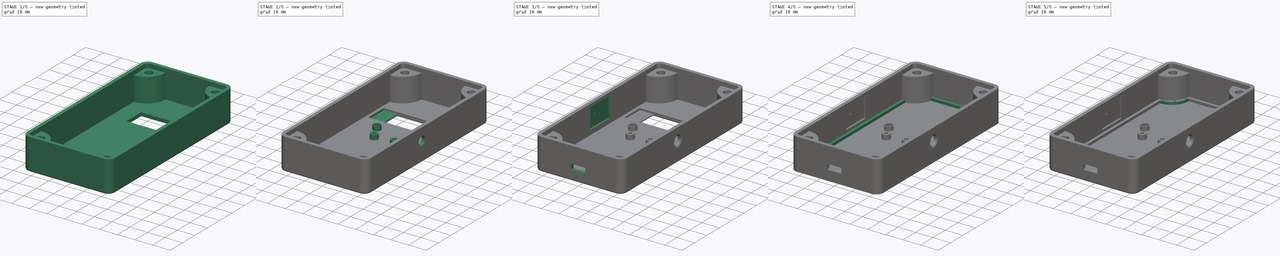
[diagram: build sequence overview — one tinted view per stage of 5, left to right]
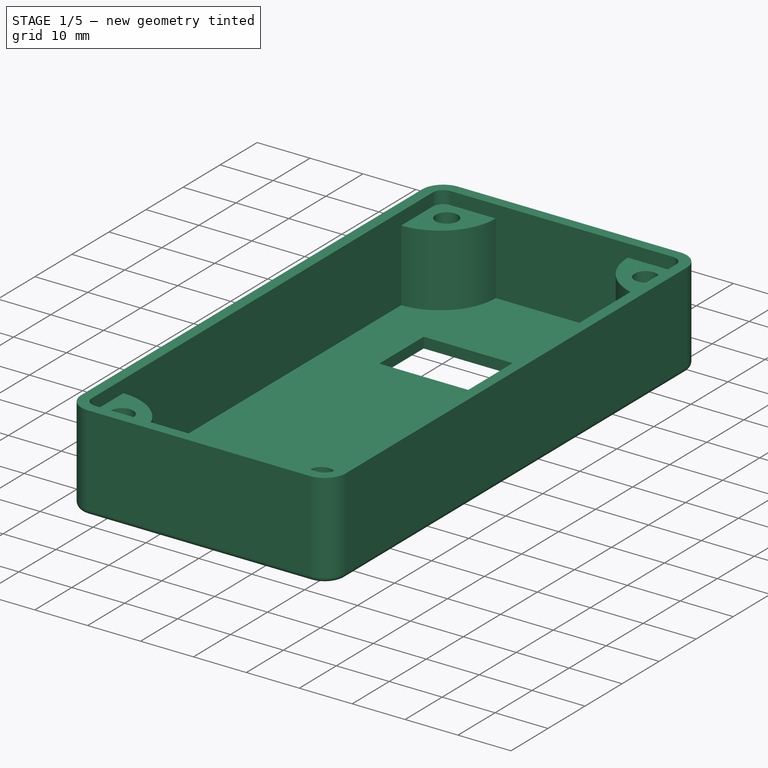
[diagram: stage 1 of 5 — iso view after this stage's code; geometry added in this stage tinted green]
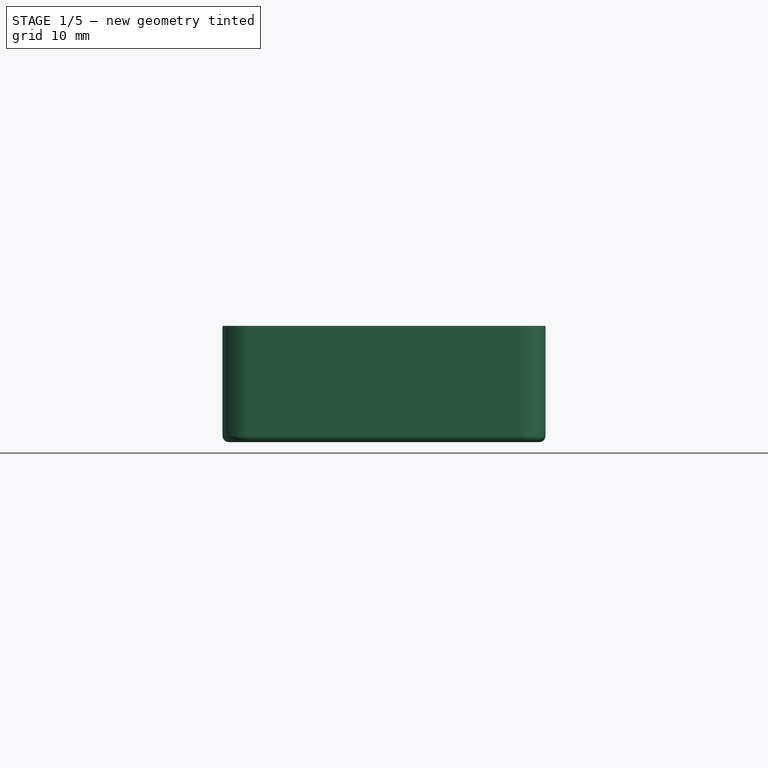
[diagram: stage 1 of 5 — front view after this stage's code; geometry added in this stage tinted green]
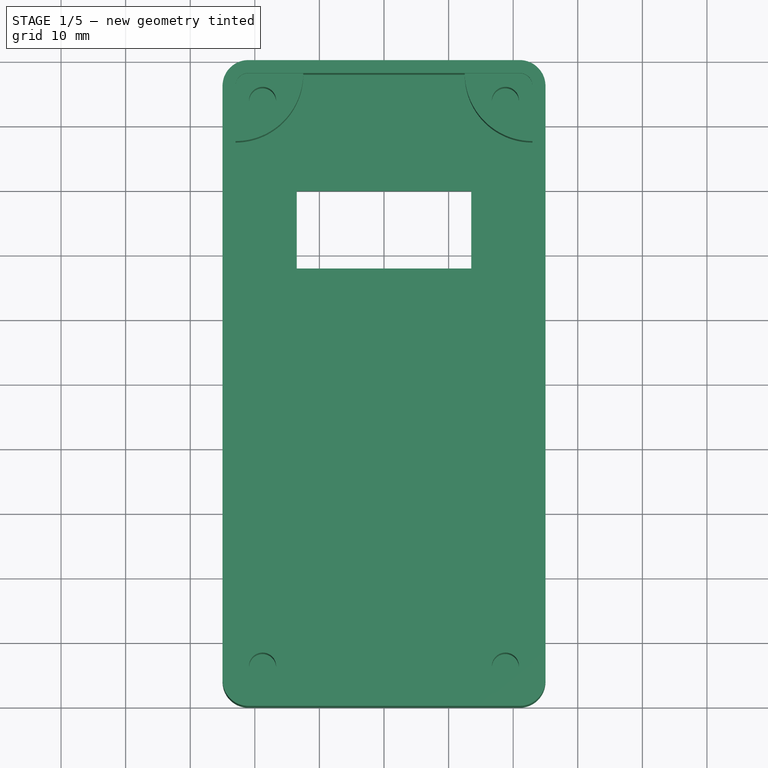
[diagram: stage 1 of 5 — top view after this stage's code; geometry added in this stage tinted green]
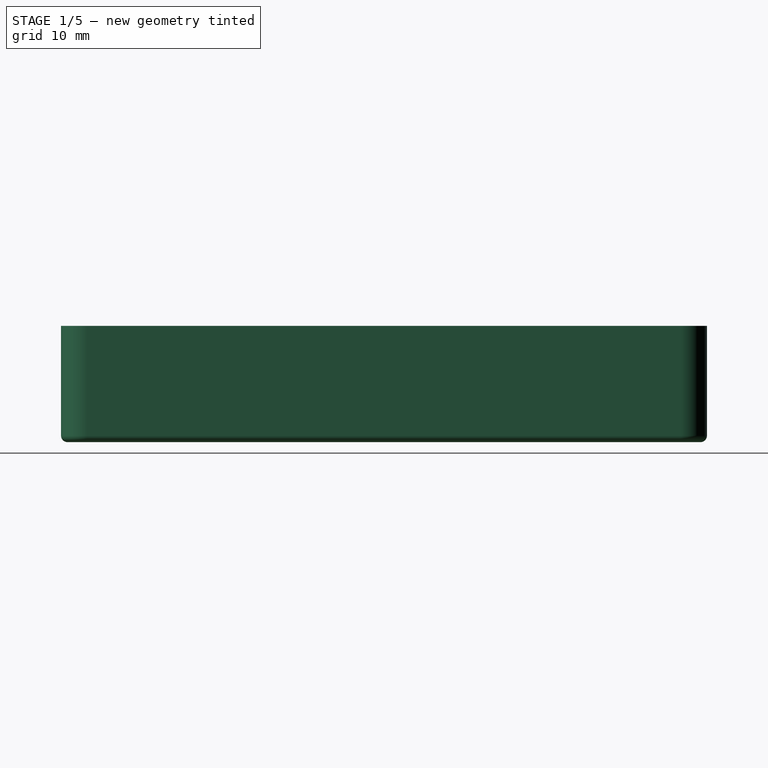
[diagram: stage 1 of 5 — right view after this stage's code; geometry added in this stage tinted green]
FCSTD DOCUMENT  (FreeCAD 1.0R39109 (Git))
Label: Project_Box_OLEDBOXFACE_91_PF_TempSensor_New
License: All rights reserved
LicenseURL: http://en.wikipedia.org/wiki/All_rights_reserved
objects: Sketcher::SketchObject×18, PartDesign::Pocket×12, PartDesign::Pad×7, PartDesign::Mirrored×6, PartDesign::Fillet×4, PartDesign::MultiTransform×3, PartDesign::Chamfer×2, PartDesign::Body×2, App::Part×2, Spreadsheet::Sheet×1, Part::Part2DObjectPython×1
note: 132 computed .brp shape members not serialized (recipe doc carries the construction recipe); baked Part::Feature solids carry a one-line shape summary decoded from their .brp

FEATURE [Spreadsheet::Sheet] Spreadsheet  label="p"
  cells = A1='box_outer_width; B1(box_outer_width)=50; A2='box_outer_length; B2(box_outer_length)=100; A3='box_outer_depth; B3(box_outer_depth)=18; A5='box_inner_width; B5(box_inner_width)==B1 - B12 * 2; C5='Calculated; A6='box_inner_length; B6(box_inner_length)==B2 - B12 * 2; C6='Calculated; A7='box_inner_depth; B7(box_inner_depth)==B3 - B12; C7='Calculated; A9='box_outer_radius; B9(box_outer_radius)==B12 + 2; C9='Calculated; A10='box_inner_radius; B10(box_inner_radius)==B9 / 2; C10='Calculated; A12='box_wall_thickness; B12(box_wall_thickness)=2; A13='box_wall_clearance; B13(box_wall_clearance)==B12 * 0.2; C13='Calculated 20%; A15='lug_insert_diameter; B15(lug_insert_diameter)=4.2; A16='lug_depth; B16(lug_depth)==B7 - B12; A17='lug_outer_radius; B17(lug_outer_radius)==B15 * 2.5; A19='face_fillet; B19(face_fillet)=1; A21='lid_ridge_size; B21(lid_ridge_size)=1.5; A22='lid_screw_diameter; B22(lid_screw_diameter)=4; A23='lid_screw_chamfer; B23(lid_screw_chamfer)=1.98; A25='oled_width; B25(oled_width)=42; A26='oled_length; B26(oled_length)=12; A27='oled_depth; B27(oled_depth)=3.8; A28='oled_disp_width; B28(oled_disp_width)=27; A29='oled_disp_length; B29(oled_disp_length)=12; A30='oled_disp_offset; B30(oled_disp_offset)=1; A31='oled_clearance; B31(oled_clearance)=0.2; A32='oled_chamfer; B32(oled_chamfer)==0.5 mm; A34='led_diameter; B34(led_diameter)=3; A35='led_depth; B35(led_depth)=4.3; A36='led_lip_diameter; B36(led_lip_diameter)=3.85; A37='led_lip_depth; B37(led_lip_depth)=1; A38='led_oled_clearance; B38(led_oled_clearance)=9; A39='led_clearance; B39(led_clearance)=0.5; A40='led_fillet; B40(led_fillet)==0.5 mm; A42='pi_post_hole_diameter; B42(pi_post_hole_diameter)=2.1; A43='pi_post_diameter; B43(pi_post_diameter)==B42 * 2; C43='Calculated; A44='pi_post_depth; B44(pi_post_depth)=2.75; A45='pi_post_screw_diameter; B45(pi_post_screw_diameter)=2; A46='pi_post_width; B46(pi_post_width)=11.4; A47='pi_post_length; B47(pi_post_length)==B50 - 2; C47='Calculated; A48='pi_width; B48(pi_width)=21; A49='pi_pin_width; B49(pi_pin_width)=17.78; A50='pi_length; B50(pi_length)=51; A51='pi_depth; B51(pi_depth)=1; A52='pi_usb_width; B52(pi_usb_width)=8.1; A53='pi_usb_length; B53(pi_usb_length)=3; A54='pi_usb_depth; B54(pi_usb_depth)=6; A55='pi_usb_lip_depth; B55(pi_usb_lip_depth)=1.3; A56='pi_body_clearance; B56(pi_body_clearance)=0.5; A58='sense_cable_diameter; B58(sense_cable_diameter)=5; A59='sense_cable_edge_offset; B59(sense_cable_edge_offset)=20; A60='sense_cable_clearance; B60(sense_cable_clearance)=1; A61='sense_cable_fillet; B61(sense_cable_fillet)=1; A63='touch_width; B63(touch_width)=14.5; A64='touch_length; B64(touch_length)=10.7; A65='touch_depth; B65(touch_depth)=2.15; A66='touch_hole_offset; B66(touch_hole_offset)=2.5; A67='touch_clearance; B67(touch_clearance)=1
FEATURE [Sketcher::SketchObject] Sketch  label="Main Body Sketch"
  ArcFitTolerance = 0
  AttachmentSupport = -> [XY_Plane001]
  FullyConstrained = true
  MakeInternals = false
  MapMode = 5
  expr: Constraints[16] = <<p>>.box_outer_radius
  expr: Constraints[17] = <<p>>.box_outer_width / 2
  expr: Constraints[18] = <<p>>.box_outer_length / 2
  sketch-geometry (8):
    g0: LineSegment StartX=-21 StartY=50 StartZ=0 EndX=21 EndY=50 EndZ=0
    g1: LineSegment StartX=25 StartY=46 StartZ=0 EndX=25 EndY=-46 EndZ=0
    g2: LineSegment StartX=21 StartY=-50 StartZ=0 EndX=-21 EndY=-50 EndZ=0
    g3: LineSegment StartX=-25 StartY=-46 StartZ=0 EndX=-25 EndY=46 EndZ=0
    g4: ArcOfCircle CenterX=-21 CenterY=46 CenterZ=0 NormalX=0 NormalY=0 NormalZ=1 AngleXU=0 Radius=4 StartAngle=1.5708 EndAngle=3.14159
    g5: ArcOfCircle CenterX=21 CenterY=46 CenterZ=0 NormalX=0 NormalY=0 NormalZ=1 AngleXU=0 Radius=4 StartAngle=0 EndAngle=1.5708
    g6: ArcOfCircle CenterX=21 CenterY=-46 CenterZ=0 NormalX=0 NormalY=0 NormalZ=1 AngleXU=0 Radius=4 StartAngle=4.71239 EndAngle=6.28319
    g7: ArcOfCircle CenterX=-21 CenterY=-46 CenterZ=0 NormalX=0 NormalY=0 NormalZ=1 AngleXU=0 Radius=4 StartAngle=3.14159 EndAngle=4.71239
  constraints (19):
    c: Horizontal(g0)
    c: Horizontal(g2)
    c: Vertical(g1)
    c: Vertical(g3)
    c: Tangent(g3,g4) = 1.5708
    c: Tangent(g0,g4) = 1.5708
    c: Tangent(g0,g5) = 1.5708
    c: Tangent(g1,g5) = 1.5708
    c: Tangent(g1,g6) = 1.5708
    c: Tangent(g2,g6) = 1.5708
    c: Tangent(g2,g7) = 1.5708
    c: Tangent(g3,g7) = 1.5708
    c: Symmetric(g5,g7,g-1)
    c: Equal(g6,g7)
    c: Equal(g7,g4)
    c: Equal(g4,g5)
    c: Radius(g5) = 4
    c: DistanceX(g3,g-1) = 25
    c: DistanceY(g-1,g0) = 50
FEATURE [PartDesign::Pad] Pad  label="Box Outer Body"
  Direction = (0,0,1)
  Length = 18
  Length2 = 10
  Profile = -> Sketch
  ReferenceAxis = -> Sketch [N_Axis]
  Suppressed = false
  Type = 0
  expr: Length = <<p>>.box_outer_depth
FEATURE [Sketcher::SketchObject] Sketch001  label="Inner Body Sketch"
  ArcFitTolerance = 0
  AttachmentSupport = -> [Pad]
  FullyConstrained = true
  MakeInternals = false
  MapMode = 5
  Placement = pos=(0,0,18) rot=(0,0,1;0rad)
  expr: Constraints[16] = <<p>>.box_inner_width / 2
  expr: Constraints[17] = <<p>>.box_inner_length / 2
  expr: Constraints[18] = <<p>>.box_inner_radius
  sketch-geometry (8):
    g0: LineSegment StartX=-21 StartY=48 StartZ=0 EndX=21 EndY=48 EndZ=0
    g1: LineSegment StartX=23 StartY=46 StartZ=0 EndX=23 EndY=-46 EndZ=0
    g2: LineSegment StartX=21 StartY=-48 StartZ=0 EndX=-21 EndY=-48 EndZ=0
    g3: LineSegment StartX=-23 StartY=-46 StartZ=0 EndX=-23 EndY=46 EndZ=0
    g4: ArcOfCircle CenterX=-21 CenterY=46 CenterZ=0 NormalX=0 NormalY=0 NormalZ=1 AngleXU=0 Radius=2 StartAngle=1.5708 EndAngle=3.14159
    g5: ArcOfCircle CenterX=21 CenterY=46 CenterZ=0 NormalX=0 NormalY=0 NormalZ=1 AngleXU=0 Radius=2 StartAngle=4e-16 EndAngle=1.5708
    g6: ArcOfCircle CenterX=21 CenterY=-46 CenterZ=0 NormalX=0 NormalY=0 NormalZ=1 AngleXU=0 Radius=2 StartAngle=4.71239 EndAngle=6.28319
    g7: ArcOfCircle CenterX=-21 CenterY=-46 CenterZ=0 NormalX=0 NormalY=0 NormalZ=1 AngleXU=0 Radius=2 StartAngle=3.14159 EndAngle=4.71239
  constraints (19):
    c: Horizontal(g0)
    c: Horizontal(g2)
    c: Vertical(g1)
    c: Vertical(g3)
    c: Tangent(g3,g4) = 1.5708
    c: Tangent(g0,g4) = 1.5708
    c: Tangent(g0,g5) = 1.5708
    c: Tangent(g1,g5) = 1.5708
    c: Tangent(g1,g6) = 1.5708
    c: Tangent(g2,g6) = 1.5708
    c: Tangent(g2,g7) = 1.5708
    c: Tangent(g3,g7) = 1.5708
    c: Equal(g4,g5)
    c: Equal(g5,g6)
    c: Equal(g6,g7)
    c: Symmetric(g5,g7,g-1)
    c: DistanceX(g3,g-1) = 23
    c: DistanceY(g-1,g0) = 48
    c: Radius(g5) = 2
FEATURE [PartDesign::Pocket] Pocket  label="Box Inner Pocket"
  BaseFeature = -> Pad
  Direction = (0,0,-1)
  Length = 16
  Length2 = 5
  Profile = -> Sketch001
  ReferenceAxis = -> Sketch001 [N_Axis]
  Suppressed = false
  Type = 0
  expr: Length = <<p>>.box_inner_depth
FEATURE [Sketcher::SketchObject] Sketch002  label="Lug Sketch"
  ArcFitTolerance = 0
  AttachmentSupport = -> [Pocket]
  FullyConstrained = true
  MakeInternals = false
  MapMode = 5
  Placement = pos=(0,0,2) rot=(0,0,1;0rad)
  expr: Constraints[10] = <<p>>.lug_insert_diameter
  expr: Constraints[11] = <<p>>.lug_insert_diameter
  expr: Constraints[6] = <<p>>.lug_outer_radius
  expr: Constraints[7] = <<p>>.box_inner_width / 2
  expr: Constraints[8] = <<p>>.box_inner_length / 2
  expr: Constraints[9] = <<p>>.lug_insert_diameter
  sketch-geometry (4):
    g0: LineSegment StartX=-23 StartY=37.5 StartZ=0 EndX=-23 EndY=48 EndZ=0
    g1: LineSegment StartX=-23 StartY=48 StartZ=0 EndX=-12.5 EndY=48 EndZ=0
    g2: ArcOfCircle CenterX=-23 CenterY=48 CenterZ=0 NormalX=0 NormalY=0 NormalZ=1 AngleXU=0 Radius=10.5 StartAngle=4.71239 EndAngle=6.28319
    g3: Circle CenterX=-18.8 CenterY=43.8 CenterZ=0 NormalX=0 NormalY=0 NormalZ=1 AngleXU=0 Radius=2.1
  constraints (12):
    c: Vertical(g0)
    c: Coincident(g0,g1)
    c: Horizontal(g1)
    c: Coincident(g2,g0)
    c: Coincident(g2,g1)
    c: Coincident(g2,g0)
    c: Radius(g2) = 10.5
    c: DistanceX(g0,g-1) = 23
    c: DistanceY(g-1,g0) = 48
    c: Diameter(g3) = 4.2
    c: DistanceX(g0,g3) = 4.2
    c: DistanceY(g3,g0) = 4.2
FEATURE [PartDesign::Pad] Pad001  label="Lug"
  BaseFeature = -> Pocket
  Direction = (0,0,1)
  Length = 13.6
  Length2 = 10
  Profile = -> Sketch002
  ReferenceAxis = -> Sketch002 [N_Axis]
  Suppressed = false
  Type = 0
  expr: Length = <<p>>.lug_depth - <<p>>.box_wall_clearance
FEATURE [PartDesign::Mirrored] Mirrored
  MirrorPlane = -> Sketch002 [V_Axis]
  Suppressed = false
  TransformMode = 0
FEATURE [PartDesign::Mirrored] Mirrored001
  MirrorPlane = -> Sketch002 [H_Axis]
  Suppressed = false
  TransformMode = 0
FEATURE [PartDesign::MultiTransform] MultiTransform  label="Lugs Mirror"
  BaseFeature = -> Pad001
  Originals = -> [Pad001]
  Suppressed = false
  TransformMode = 0
  Transformations = -> [Mirrored,Mirrored001]
FEATURE [PartDesign::Fillet] Fillet
  Base = -> MultiTransform [Edge3,Edge9,Edge11,Edge12,Edge13,Edge14,Edge15,Edge6]
  BaseFeature = -> MultiTransform
  Radius = 1
  SupportTransform = false
  Suppressed = false
  UseAllEdges = false
  expr: Radius = Spreadsheet.face_fillet
FEATURE [PartDesign::Body] Body001  label="Main Lid"
  AllowCompound = false
  Group = -> [Sketch003,Pad002,Sketch004,Pad003,Sketch005,Pocket001,Sketch006,Pad004,MultiTransform001,Mirrored002,Mirrored003,Sketch007,Pocket002,MultiTransform002,Mirrored004,Mirrored005,Fillet001,Chamfer]
  Origin = -> Origin003
  Tip = -> Chamfer
FEATURE [App::Part] Part001  label="Lid"
  Group = -> [Body001]
  Origin = -> Origin002
FEATURE [Sketcher::SketchObject] Sketch008  label="Oled Display Pocket Sketch"
  ArcFitTolerance = 0
  AttachmentSupport = -> [Fillet]
  FullyConstrained = true
  MakeInternals = false
  MapMode = 5
  Placement = pos=(0,0,2) rot=(0,0,1;0rad)
  expr: Constraints[10] = <<p>>.oled_disp_width / 2
  expr: Constraints[11] = <<p>>.box_inner_length / 4 + <<p>>.oled_length / 2
  expr: Constraints[8] = <<p>>.oled_disp_length
  expr: Constraints[9] = <<p>>.oled_disp_width
  sketch-geometry (4):
    g0: LineSegment StartX=-13.5 StartY=30 StartZ=0 EndX=13.5 EndY=30 EndZ=0
    g1: LineSegment StartX=13.5 StartY=30 StartZ=0 EndX=13.5 EndY=18 EndZ=0
    g2: LineSegment StartX=13.5 StartY=18 StartZ=0 EndX=-13.5 EndY=18 EndZ=0
    g3: LineSegment StartX=-13.5 StartY=18 StartZ=0 EndX=-13.5 EndY=30 EndZ=0
  constraints (12):
    c: Coincident(g0,g1)
    c: Coincident(g1,g2)
    c: Coincident(g2,g3)
    c: Coincident(g3,g0)
    c: Horizontal(g0)
    c: Horizontal(g2)
    c: Vertical(g1)
    c: Vertical(g3)
    c: DistanceY(g3,g3) = 12
    c: DistanceX(g0,g0) = 27
    c: DistanceX(g2,g-1) = 13.5
    c: DistanceY(g-1,g0) = 30
FEATURE [PartDesign::Pocket] Pocket003  label="Oled Display Pocket"
  BaseFeature = -> Fillet
  Direction = (0,0,-1)
  Length = 2
  Length2 = 5
  Profile = -> Sketch008
  ReferenceAxis = -> Sketch008 [N_Axis]
  Suppressed = false
  Type = 0
  expr: Length = <<p>>.box_wall_thickness
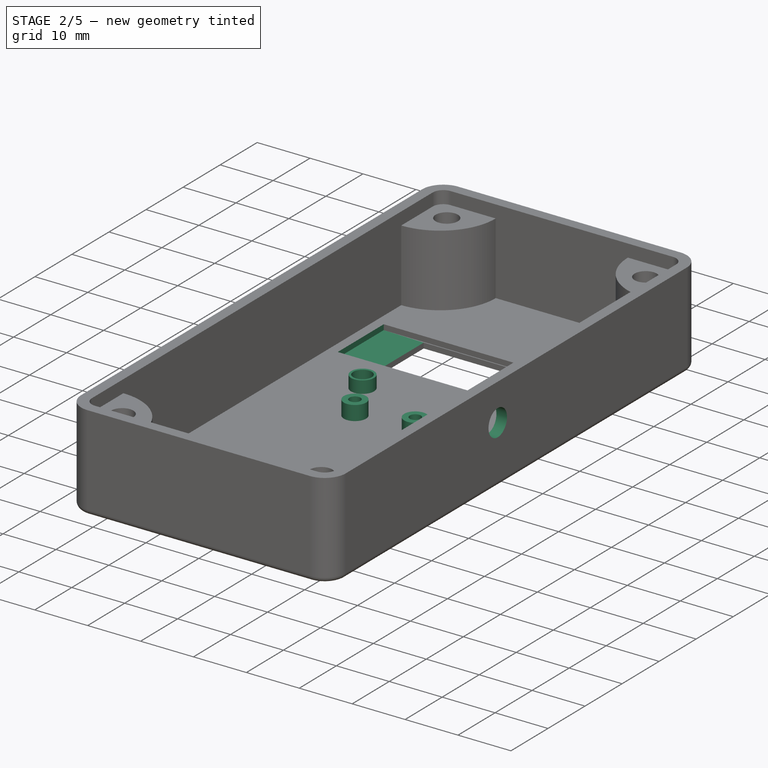
[diagram: stage 2 of 5 — iso view after this stage's code; geometry added in this stage tinted green]
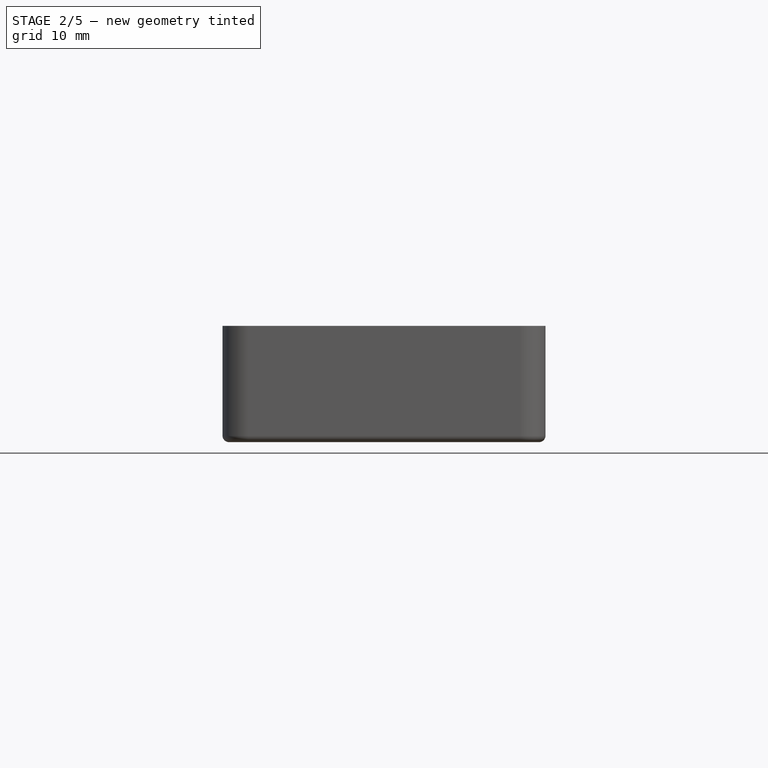
[diagram: stage 2 of 5 — front view after this stage's code; geometry added in this stage tinted green]
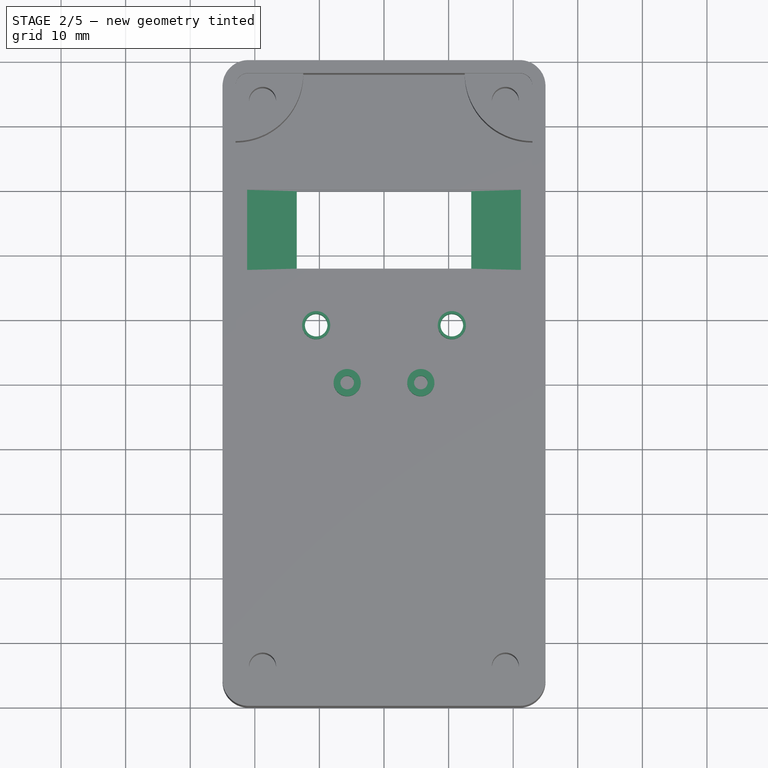
[diagram: stage 2 of 5 — top view after this stage's code; geometry added in this stage tinted green]
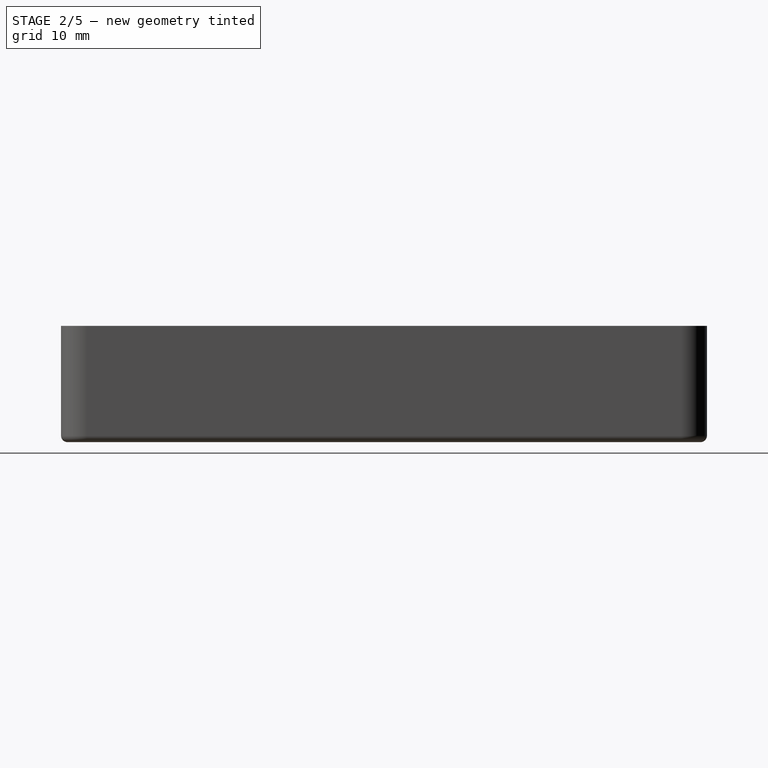
[diagram: stage 2 of 5 — right view after this stage's code; geometry added in this stage tinted green]
FEATURE [Sketcher::SketchObject] Sketch009  label="OLED Body Sketch"
  ArcFitTolerance = 0
  AttachmentSupport = -> [Pocket003]
  FullyConstrained = true
  MakeInternals = false
  MapMode = 5
  Placement = pos=(0,0,2) rot=(0,0,1;0rad)
  expr: Constraints[10] = <<p>>.box_inner_length / 4 + <<p>>.oled_length / 2 + <<p>>.oled_clearance
  expr: Constraints[11] = <<p>>.oled_length + <<p>>.oled_clearance * 2
  expr: Constraints[8] = <<p>>.oled_width + <<p>>.oled_clearance * 2
  expr: Constraints[9] = <<p>>.oled_width / 2 + <<p>>.oled_clearance
  sketch-geometry (4):
    g0: LineSegment StartX=-21.2 StartY=30.2 StartZ=0 EndX=21.2 EndY=30.2 EndZ=0
    g1: LineSegment StartX=21.2 StartY=30.2 StartZ=0 EndX=21.2 EndY=17.8 EndZ=0
    g2: LineSegment StartX=21.2 StartY=17.8 StartZ=0 EndX=-21.2 EndY=17.8 EndZ=0
    g3: LineSegment StartX=-21.2 StartY=17.8 StartZ=0 EndX=-21.2 EndY=30.2 EndZ=0
  constraints (12):
    c: Coincident(g0,g1)
    c: Coincident(g1,g2)
    c: Coincident(g2,g3)
    c: Coincident(g3,g0)
    c: Horizontal(g0)
    c: Horizontal(g2)
    c: Vertical(g1)
    c: Vertical(g3)
    c: DistanceX(g0,g0) = 42.4
    c: DistanceX(g0,g-1) = 21.2
    c: DistanceY(g-1,g0) = 30.2
    c: DistanceY(g3,g3) = 12.4
FEATURE [PartDesign::Pocket] Pocket004  label="OLED Body Pocket"
  BaseFeature = -> Pocket003
  Direction = (0,0,-1)
  Length = 1
  Length2 = 5
  Profile = -> Sketch009
  ReferenceAxis = -> Sketch009 [N_Axis]
  Suppressed = false
  Type = 0
  expr: Length = <<p>>.box_wall_thickness - 1
FEATURE [Sketcher::SketchObject] Sketch010  label="LEDs Sketch"
  ArcFitTolerance = 0
  AttachmentSupport = -> [Pocket004]
  FullyConstrained = true
  MakeInternals = false
  MapMode = 5
  Placement = pos=(0,0,2) rot=(0,0,1;0rad)
  expr: Constraints[1] = <<p>>.led_diameter + <<p>>.led_clearance
  expr: Constraints[2] = <<p>>.box_inner_length / 4 + <<p>>.oled_length / 2 + <<p>>.oled_clearance - <<p>>.oled_length - <<p>>.led_oled_clearance
  expr: Constraints[3] = <<p>>.box_inner_length / 4 + <<p>>.oled_length / 2 + <<p>>.oled_clearance - <<p>>.oled_length - <<p>>.led_oled_clearance
  expr: Constraints[4] = <<p>>.oled_disp_width / 2 - <<p>>.led_diameter
  expr: Constraints[5] = <<p>>.oled_disp_width / 2 - <<p>>.led_diameter
  sketch-geometry (2):
    g0: Circle CenterX=-10.5 CenterY=9.2 CenterZ=0 NormalX=0 NormalY=0 NormalZ=1 AngleXU=0 Radius=1.75
    g1: Circle CenterX=10.5 CenterY=9.2 CenterZ=0 NormalX=0 NormalY=0 NormalZ=1 AngleXU=0 Radius=1.75
  constraints (6):
    c: Equal(g0,g1)
    c: Diameter(g0) = 3.5
    c: DistanceY(g-1,g0) = 9.2
    c: DistanceY(g-1,g1) = 9.2
    c: DistanceX(g0,g-1) = 10.5
    c: DistanceX(g-1,g1) = 10.5
FEATURE [PartDesign::Pocket] Pocket005  label="LED Body Pocket"
  BaseFeature = -> Pocket004
  Direction = (0,0,-1)
  Length = 2
  Length2 = 5
  Profile = -> Sketch010
  ReferenceAxis = -> Sketch010 [N_Axis]
  Suppressed = false
  Type = 0
  expr: Length = <<p>>.box_wall_thickness
FEATURE [Sketcher::SketchObject] Sketch011  label="LEDs Post Sketch"
  ArcFitTolerance = 0
  AttachmentSupport = -> [Pocket004]
  FullyConstrained = true
  MakeInternals = false
  MapMode = 5
  Placement = pos=(0,0,2) rot=(0,0,1;0rad)
  expr: Constraints[1] = <<p>>.led_diameter + <<p>>.led_clearance
  expr: Constraints[2] = <<p>>.box_inner_length / 4 + <<p>>.oled_length / 2 + <<p>>.oled_clearance - <<p>>.oled_length - <<p>>.led_oled_clearance
  expr: Constraints[3] = <<p>>.box_inner_length / 4 + <<p>>.oled_length / 2 + <<p>>.oled_clearance - <<p>>.oled_length - <<p>>.led_oled_clearance
  expr: Constraints[4] = <<p>>.oled_disp_width / 2 - <<p>>.led_diameter
  expr: Constraints[5] = <<p>>.oled_disp_width / 2 - <<p>>.led_diameter
  expr: Constraints[8] = <<p>>.led_lip_diameter + <<p>>.led_clearance
  expr: Constraints[9] = <<p>>.led_lip_diameter + <<p>>.led_clearance
  sketch-geometry (4):
    g0: Circle CenterX=-10.5 CenterY=9.2 CenterZ=0 NormalX=0 NormalY=0 NormalZ=1 AngleXU=0 Radius=1.75
    g1: Circle CenterX=10.5 CenterY=9.2 CenterZ=0 NormalX=0 NormalY=0 NormalZ=1 AngleXU=0 Radius=1.75
    g2: Circle CenterX=-10.5 CenterY=9.2 CenterZ=0 NormalX=0 NormalY=0 NormalZ=1 AngleXU=0 Radius=2.175
    g3: Circle CenterX=10.5 CenterY=9.2 CenterZ=0 NormalX=0 NormalY=0 NormalZ=1 AngleXU=0 Radius=2.175
  constraints (10):
    c: Equal(g0,g1)
    c: Diameter(g0) = 3.5
    c: DistanceY(g-1,g0) = 9.2
    c: DistanceY(g-1,g1) = 9.2
    c: DistanceX(g0,g-1) = 10.5
    c: DistanceX(g-1,g1) = 10.5
    c: Coincident(g2,g0)
    c: Coincident(g3,g1)
    c: Diameter(g2) = 4.35
    c: Diameter(g3) = 4.35
FEATURE [PartDesign::Pad] Pad005  label="LED Posts"
  BaseFeature = -> Pocket005
  Direction = (0,0,1)
  Length = 2.3
  Length2 = 10
  Profile = -> Sketch011
  ReferenceAxis = -> Sketch011 [N_Axis]
  Suppressed = false
  Type = 0
  expr: Length = <<p>>.led_depth - <<p>>.box_wall_thickness
FEATURE [Sketcher::SketchObject] Sketch012  label="Pi Posts Sketch"
  ArcFitTolerance = 0
  AttachmentSupport = -> [Pad005]
  FullyConstrained = true
  MakeInternals = false
  MapMode = 5
  Placement = pos=(0,0,2) rot=(0,0,1;0rad)
  expr: Constraints[4] = <<p>>.pi_post_hole_diameter
  expr: Constraints[5] = <<p>>.pi_post_diameter
  expr: Constraints[6] = <<p>>.box_outer_length / 2 - (<<p>>.box_wall_thickness - <<p>>.pi_usb_lip_depth) - <<p>>.pi_post_length
  expr: Constraints[7] = <<p>>.box_outer_length / 2 - (<<p>>.box_wall_thickness - <<p>>.pi_usb_lip_depth) - <<p>>.pi_post_length
  expr: Constraints[8] = <<p>>.pi_post_width / 2
  expr: Constraints[9] = <<p>>.pi_post_width / 2
  sketch-geometry (4):
    g0: Circle CenterX=-5.7 CenterY=0.3 CenterZ=0 NormalX=0 NormalY=0 NormalZ=1 AngleXU=0 Radius=2.1
    g1: Circle CenterX=5.7 CenterY=0.3 CenterZ=0 NormalX=0 NormalY=0 NormalZ=1 AngleXU=0 Radius=2.1
    g2: Circle CenterX=-5.7 CenterY=0.3 CenterZ=0 NormalX=0 NormalY=0 NormalZ=1 AngleXU=0 Radius=1.05
    g3: Circle CenterX=5.7 CenterY=0.3 CenterZ=0 NormalX=0 NormalY=0 NormalZ=1 AngleXU=0 Radius=1.05
  constraints (10):
    c: Coincident(g2,g0)
    c: Coincident(g3,g1)
    c: Equal(g2,g3)
    c: Equal(g1,g0)
    c: Diameter(g2) = 2.1
    c: Diameter(g0) = 4.2
    c: DistanceY(g-1,g0) = 0.3
    c: DistanceY(g-1,g1) = 0.3
    c: DistanceX(g0,g-1) = 5.7
    c: DistanceX(g-1,g1) = 5.7
FEATURE [PartDesign::Pad] Pad006  label="Pi Posts"
  BaseFeature = -> Pad005
  Direction = (0,0,1)
  Length = 2.75
  Length2 = 10
  Profile = -> Sketch012
  ReferenceAxis = -> Sketch012 [N_Axis]
  Suppressed = false
  Type = 0
  expr: Length = <<p>>.pi_post_depth
FEATURE [Sketcher::SketchObject] Sketch013  label="Sense Cable Sketch"
  ArcFitTolerance = 0
  AttachmentSupport = -> [Pad006]
  FullyConstrained = true
  MakeInternals = false
  MapMode = 5
  Placement = pos=(25,0,0) rot=(0.57735,0.57735,0.57735;2.0944rad)
  expr: Constraints[0] = <<p>>.sense_cable_diameter
  expr: Constraints[1] = <<p>>.box_outer_width / 2 - <<p>>.sense_cable_edge_offset
  expr: Constraints[2] = <<p>>.box_outer_depth / 2 + <<p>>.box_wall_thickness
  sketch-geometry (1):
    g0: Circle CenterX=-5 CenterY=11 CenterZ=0 NormalX=0 NormalY=0 NormalZ=1 AngleXU=0 Radius=2.5
  constraints (3):
    c: Diameter(g0) = 5
    c: DistanceX(g0,g-1) = 5
    c: DistanceY(g-1,g0) = 11
FEATURE [PartDesign::Pocket] Pocket006  label="Sense Cable Pocket"
  BaseFeature = -> Pad006
  Direction = (-1,0,0)
  Length = 2
  Length2 = 5
  Profile = -> Sketch013
  ReferenceAxis = -> Sketch013 [N_Axis]
  Suppressed = false
  Type = 0
  expr: Length = <<p>>.box_wall_thickness
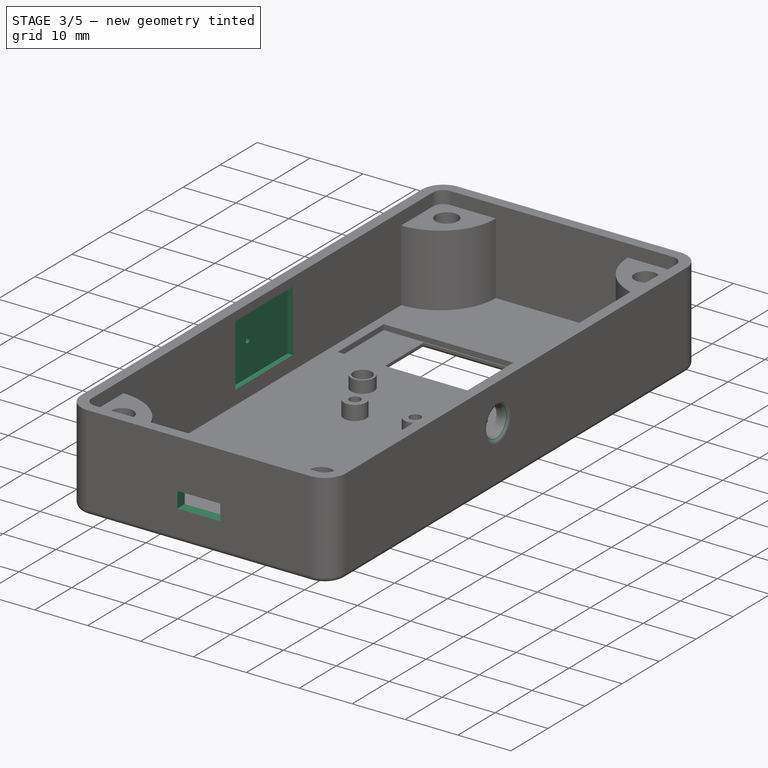
[diagram: stage 3 of 5 — iso view after this stage's code; geometry added in this stage tinted green]
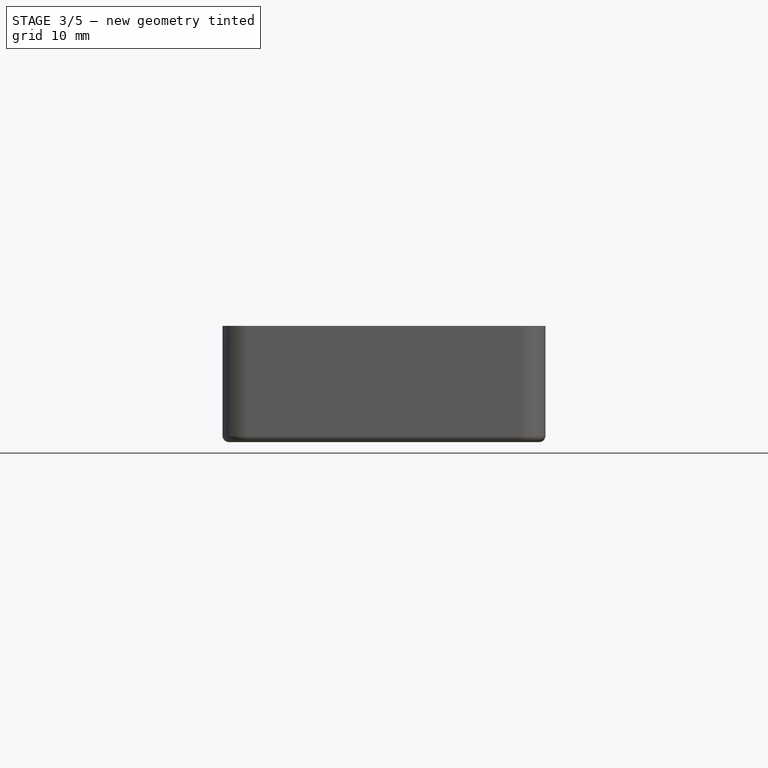
[diagram: stage 3 of 5 — front view after this stage's code; geometry added in this stage tinted green]
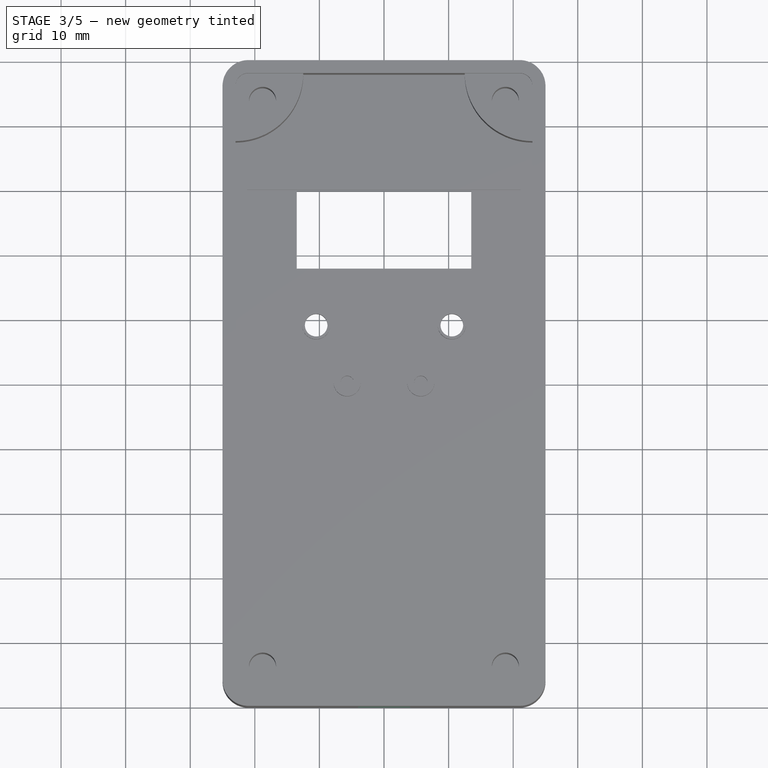
[diagram: stage 3 of 5 — top view after this stage's code; geometry added in this stage tinted green]
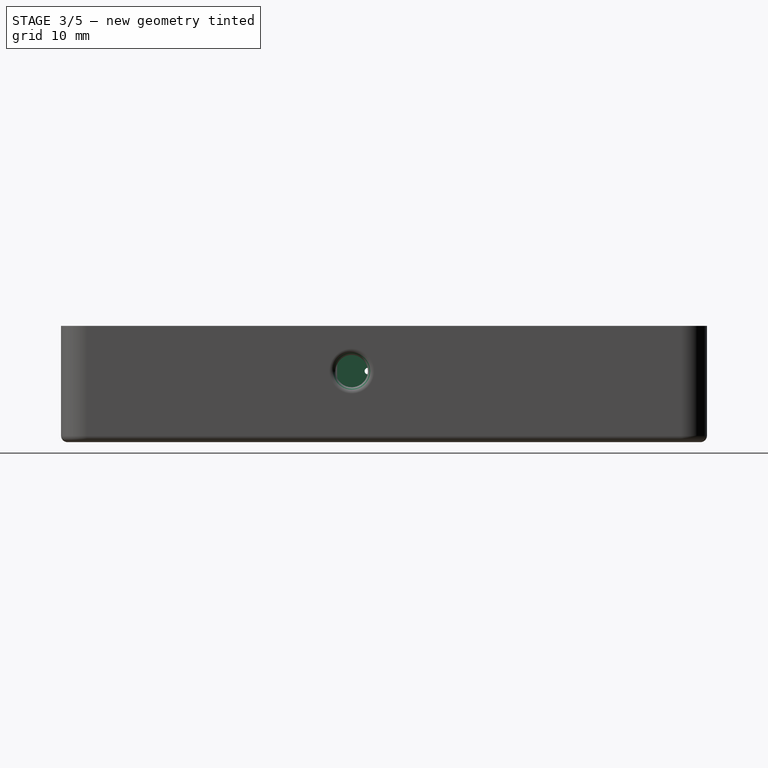
[diagram: stage 3 of 5 — right view after this stage's code; geometry added in this stage tinted green]
FEATURE [PartDesign::Fillet] Fillet002  label="Sense Cable Fillet"
  Base = -> Pocket006 [Edge51]
  BaseFeature = -> Pocket006
  Radius = 1
  SupportTransform = false
  Suppressed = false
  UseAllEdges = false
  expr: Radius = <<p>>.sense_cable_fillet
FEATURE [PartDesign::Fillet] Fillet003  label="LED Pocket Fillet"
  Base = -> Fillet002 [Edge43,Edge42]
  BaseFeature = -> Fillet002
  Radius = 0.5
  SupportTransform = false
  Suppressed = false
  UseAllEdges = false
  expr: Radius = <<p>>.led_fillet
FEATURE [PartDesign::Chamfer] Chamfer001  label="OLED Chamfer"
  Angle = 45
  Base = -> Fillet003 [Edge11,Edge13,Edge12,Edge10]
  BaseFeature = -> Fillet003
  ChamferType = 0
  FlipDirection = false
  Size = 0.5
  Size2 = 1
  SupportTransform = false
  Suppressed = false
  UseAllEdges = false
  expr: Size = <<p>>.oled_chamfer
FEATURE [Sketcher::SketchObject] Sketch014  label="Touch Pocket Sketch"
  ArcFitTolerance = 0
  AttachmentSupport = -> [Chamfer001]
  FullyConstrained = true
  MakeInternals = false
  MapMode = 5
  Placement = pos=(-23,0,0) rot=(0.57735,0.57735,0.57735;2.0944rad)
  expr: Constraints[10] = <<p>>.touch_width / 2
  expr: Constraints[11] = <<p>>.box_outer_depth / 2 + <<p>>.touch_length / 2 + <<p>>.box_wall_thickness
  expr: Constraints[8] = <<p>>.touch_width + <<p>>.touch_clearance
  expr: Constraints[9] = <<p>>.touch_length + <<p>>.touch_clearance
  sketch-geometry (4):
    g0: LineSegment StartX=-7.25 StartY=16.35 StartZ=0 EndX=8.25 EndY=16.35 EndZ=0
    g1: LineSegment StartX=8.25 StartY=16.35 StartZ=0 EndX=8.25 EndY=4.65 EndZ=0
    g2: LineSegment StartX=8.25 StartY=4.65 StartZ=0 EndX=-7.25 EndY=4.65 EndZ=0
    g3: LineSegment StartX=-7.25 StartY=4.65 StartZ=0 EndX=-7.25 EndY=16.35 EndZ=0
  constraints (12):
    c: Coincident(g0,g1)
    c: Coincident(g1,g2)
    c: Coincident(g2,g3)
    c: Coincident(g3,g0)
    c: Horizontal(g0)
    c: Horizontal(g2)
    c: Vertical(g1)
    c: Vertical(g3)
    c: DistanceX(g0,g0) = 15.5
    c: DistanceY(g1,g1) = 11.7
    c: DistanceX(g2,g-1) = 7.25
    c: DistanceY(g-1,g0) = 16.35
FEATURE [PartDesign::Pocket] Pocket007  label="Touch Pocket"
  BaseFeature = -> Chamfer001
  Direction = (-1,0,0)
  Length = 1
  Length2 = 5
  Profile = -> Sketch014
  ReferenceAxis = -> Sketch014 [N_Axis]
  Suppressed = false
  Type = 0
  expr: Length = <<p>>.box_wall_thickness - 1
FEATURE [Sketcher::SketchObject] Sketch015  label="Touch Hole Sketch"
  ArcFitTolerance = 0
  AttachmentSupport = -> [Pocket007]
  FullyConstrained = true
  MakeInternals = false
  MapMode = 5
  Placement = pos=(-24,0,0) rot=(0.57735,0.57735,0.57735;2.0944rad)
  expr: Constraints[1] = <<p>>.touch_hole_offset
  expr: Constraints[2] = <<p>>.box_outer_depth / 2 + <<p>>.box_wall_thickness
  sketch-geometry (1):
    g0: Circle CenterX=-2.5 CenterY=11 CenterZ=0 NormalX=0 NormalY=0 NormalZ=1 AngleXU=0 Radius=0.5
  constraints (3):
    c: Diameter(g0) = 1
    c: DistanceX(g0,g-1) = 2.5
    c: DistanceY(g-1,g0) = 11
FEATURE [PartDesign::Pocket] Pocket008  label="Touch Hole"
  BaseFeature = -> Pocket007
  Direction = (-1,0,0)
  Length = 2
  Length2 = 5
  Profile = -> Sketch015
  ReferenceAxis = -> Sketch015 [N_Axis]
  Suppressed = false
  Type = 0
  expr: Length = <<p>>.box_wall_thickness
FEATURE [Sketcher::SketchObject] Sketch016  label="Pi USB Sketch"
  ArcFitTolerance = 0
  AttachmentSupport = -> [Pocket008]
  FullyConstrained = true
  MakeInternals = false
  MapMode = 5
  Placement = pos=(0,-48,0) rot=(0,0.707107,0.707107;3.14159rad)
  expr: Constraints[10] = <<p>>.pi_usb_width / 2
  expr: Constraints[11] = <<p>>.box_wall_thickness + <<p>>.pi_post_depth + <<p>>.pi_depth
  expr: Constraints[8] = <<p>>.pi_usb_width
  expr: Constraints[9] = <<p>>.pi_usb_length
  sketch-geometry (4):
    g0: LineSegment StartX=-4.05 StartY=8.75 StartZ=0 EndX=4.05 EndY=8.75 EndZ=0
    g1: LineSegment StartX=4.05 StartY=8.75 StartZ=0 EndX=4.05 EndY=5.75 EndZ=0
    g2: LineSegment StartX=4.05 StartY=5.75 StartZ=0 EndX=-4.05 EndY=5.75 EndZ=0
    g3: LineSegment StartX=-4.05 StartY=5.75 StartZ=0 EndX=-4.05 EndY=8.75 EndZ=0
  constraints (12):
    c: Coincident(g0,g1)
    c: Coincident(g1,g2)
    c: Coincident(g2,g3)
    c: Coincident(g3,g0)
    c: Horizontal(g0)
    c: Horizontal(g2)
    c: Vertical(g1)
    c: Vertical(g3)
    c: DistanceX(g0,g0) = 8.1
    c: DistanceY(g1,g1) = 3
    c: DistanceX(g2,g-1) = 4.05
    c: DistanceY(g-1,g2) = 5.75
FEATURE [PartDesign::Pocket] Pocket009  label="Pi USB Hole"
  BaseFeature = -> Pocket008
  Direction = (0,-1,2e-16)
  Length = 2
  Length2 = 5
  Profile = -> Sketch016
  ReferenceAxis = -> Sketch016 [N_Axis]
  Suppressed = false
  Type = 0
  expr: Length = <<p>>.box_wall_thickness
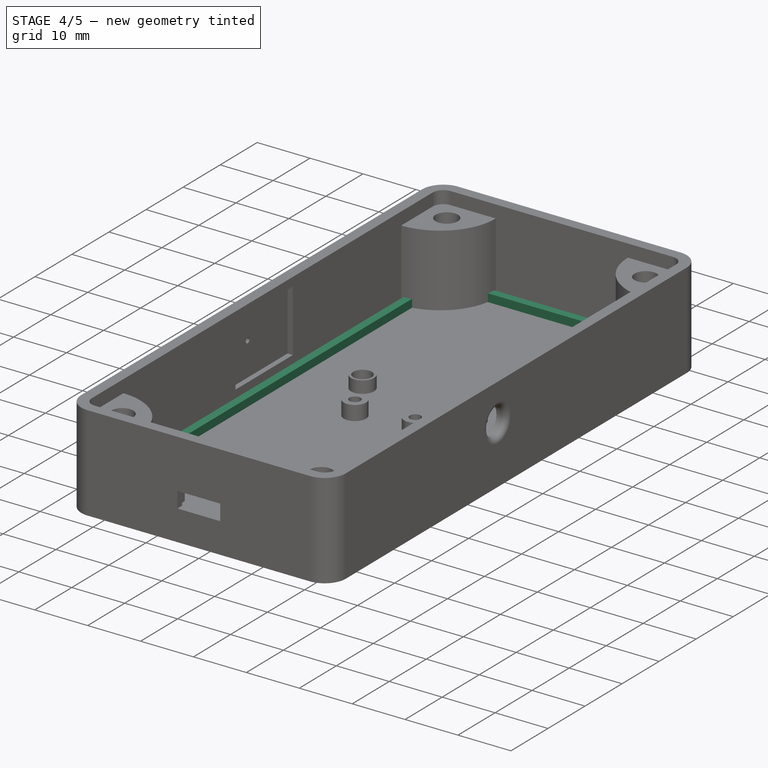
[diagram: stage 4 of 5 — iso view after this stage's code; geometry added in this stage tinted green]
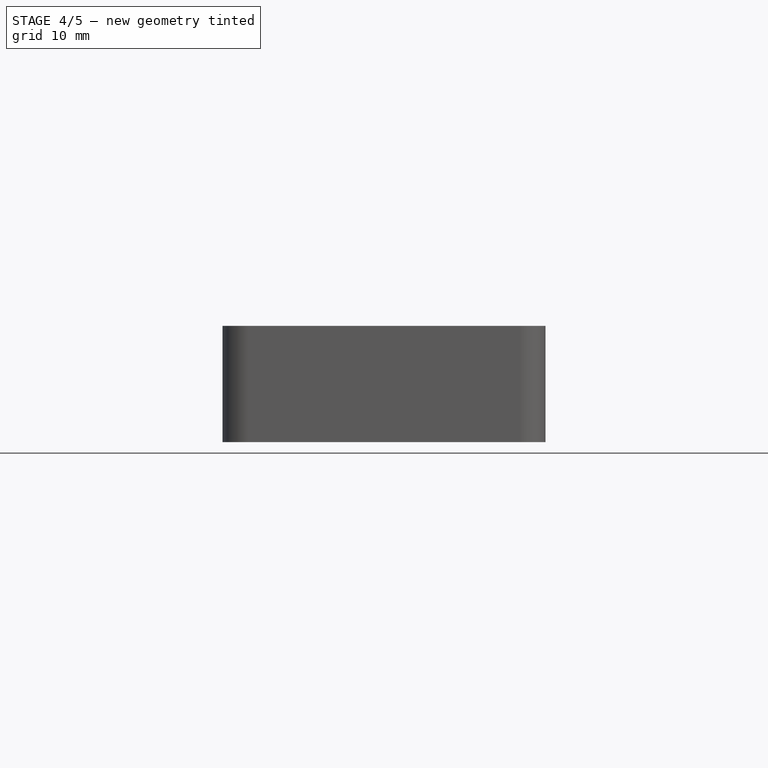
[diagram: stage 4 of 5 — front view after this stage's code; geometry added in this stage tinted green]
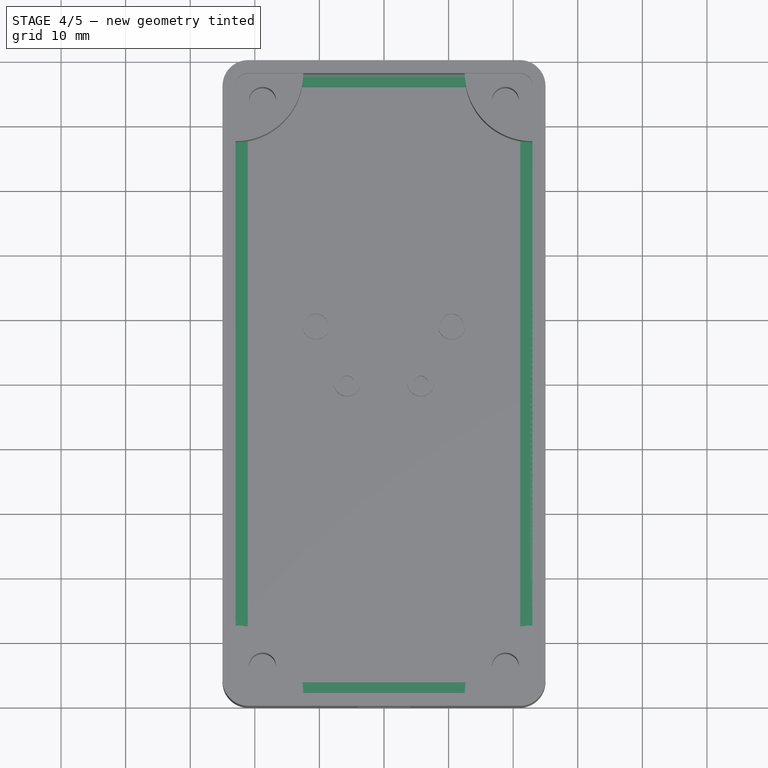
[diagram: stage 4 of 5 — top view after this stage's code; geometry added in this stage tinted green]
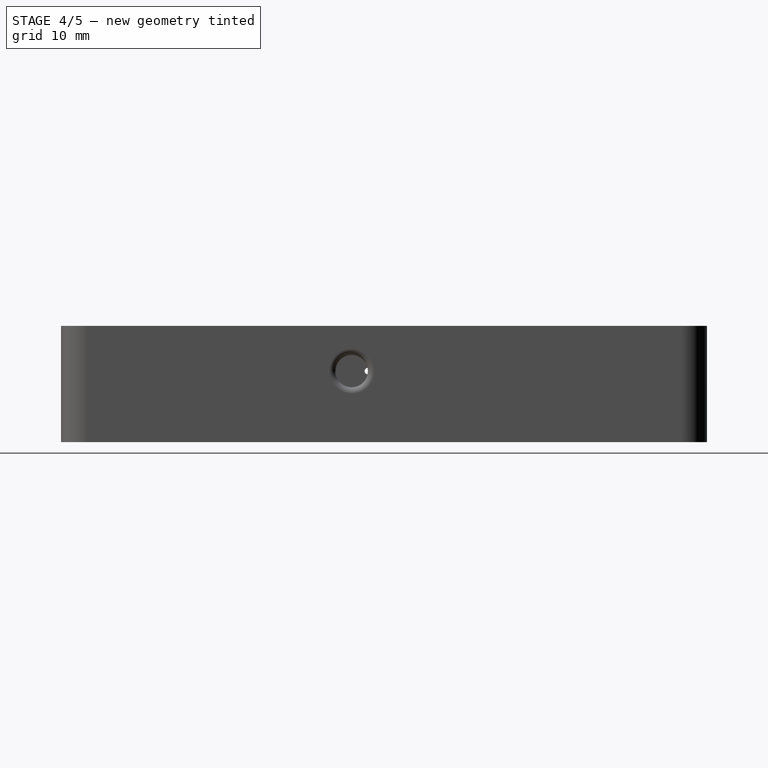
[diagram: stage 4 of 5 — right view after this stage's code; geometry added in this stage tinted green]
FEATURE [Sketcher::SketchObject] Sketch003  label="Main Lid Sketch"
  ArcFitTolerance = 0
  AttachmentSupport = -> [XY_Plane003]
  FullyConstrained = true
  MakeInternals = false
  MapMode = 5
  expr: Constraints[15] = <<p>>.box_outer_radius
  expr: Constraints[17] = <<p>>.box_outer_length / 2
  expr: Constraints[18] = <<p>>.box_outer_width / 2
  sketch-geometry (8):
    g0: LineSegment StartX=-21 StartY=50 StartZ=0 EndX=21 EndY=50 EndZ=0
    g1: LineSegment StartX=25 StartY=46 StartZ=0 EndX=25 EndY=-46 EndZ=0
    g2: LineSegment StartX=21 StartY=-50 StartZ=0 EndX=-21 EndY=-50 EndZ=0
    g3: LineSegment StartX=-25 StartY=-46 StartZ=0 EndX=-25 EndY=46 EndZ=0
    g4: ArcOfCircle CenterX=-21 CenterY=46 CenterZ=0 NormalX=0 NormalY=0 NormalZ=1 AngleXU=0 Radius=4 StartAngle=1.5708 EndAngle=3.14159
    g5: ArcOfCircle CenterX=21 CenterY=46 CenterZ=0 NormalX=0 NormalY=0 NormalZ=1 AngleXU=0 Radius=4 StartAngle=2e-16 EndAngle=1.5708
    g6: ArcOfCircle CenterX=21 CenterY=-46 CenterZ=0 NormalX=0 NormalY=0 NormalZ=1 AngleXU=0 Radius=4 StartAngle=4.71239 EndAngle=6.28319
    g7: ArcOfCircle CenterX=-21 CenterY=-46 CenterZ=0 NormalX=0 NormalY=0 NormalZ=1 AngleXU=0 Radius=4 StartAngle=3.14159 EndAngle=4.71239
  constraints (19):
    c: Horizontal(g0)
    c: Horizontal(g2)
    c: Vertical(g1)
    c: Vertical(g3)
    c: Tangent(g0,g4) = 1.5708
    c: Tangent(g3,g4) = 1.5708
    c: Tangent(g0,g5) = 1.5708
    c: Tangent(g1,g5) = 1.5708
    c: Tangent(g1,g6) = 1.5708
    c: Tangent(g2,g6) = 1.5708
    c: Tangent(g2,g7) = 1.5708
    c: Tangent(g3,g7) = 1.5708
    c: Equal(g4,g5)
    c: Equal(g5,g6)
    c: Equal(g6,g7)
    c: Radius(g5) = 4
    c: Symmetric(g4,g6,g-1)
    c: DistanceY(g-1,g0) = 50
    c: DistanceX(g3,g-1) = 25
FEATURE [PartDesign::Pad] Pad002  label="Main Outer Lid"
  Direction = (0,0,1)
  Length = 2
  Length2 = 10
  Profile = -> Sketch003
  ReferenceAxis = -> Sketch003 [N_Axis]
  Suppressed = false
  Type = 0
  expr: Length = <<p>>.box_wall_thickness
FEATURE [Sketcher::SketchObject] Sketch004  label="Main Inner Ring Sketch"
  ArcFitTolerance = 0
  AttachmentSupport = -> [Pad002]
  FullyConstrained = true
  MakeInternals = false
  MapMode = 5
  Placement = pos=(0,0,2) rot=(0,0,1;0rad)
  expr: Constraints[15] = <<p>>.box_inner_radius
  expr: Constraints[17] = <<p>>.box_inner_width / 2 - <<p>>.box_wall_clearance
  expr: Constraints[18] = <<p>>.box_inner_length / 2 - <<p>>.box_wall_clearance
  sketch-geometry (8):
    g0: LineSegment StartX=-20.6 StartY=47.6 StartZ=0 EndX=20.6 EndY=47.6 EndZ=0
    g1: LineSegment StartX=22.6 StartY=45.6 StartZ=0 EndX=22.6 EndY=-45.6 EndZ=0
    g2: LineSegment StartX=20.6 StartY=-47.6 StartZ=0 EndX=-20.6 EndY=-47.6 EndZ=0
    g3: LineSegment StartX=-22.6 StartY=-45.6 StartZ=0 EndX=-22.6 EndY=45.6 EndZ=0
    g4: ArcOfCircle CenterX=-20.6 CenterY=45.6 CenterZ=0 NormalX=0 NormalY=0 NormalZ=1 AngleXU=0 Radius=2 StartAngle=1.5708 EndAngle=3.14159
    g5: ArcOfCircle CenterX=20.6 CenterY=45.6 CenterZ=0 NormalX=0 NormalY=0 NormalZ=1 AngleXU=0 Radius=2 StartAngle=-9e-16 EndAngle=1.5708
    g6: ArcOfCircle CenterX=20.6 CenterY=-45.6 CenterZ=0 NormalX=0 NormalY=0 NormalZ=1 AngleXU=0 Radius=2 StartAngle=4.71239 EndAngle=6.28319
    g7: ArcOfCircle CenterX=-20.6 CenterY=-45.6 CenterZ=0 NormalX=0 NormalY=0 NormalZ=1 AngleXU=0 Radius=2 StartAngle=3.14159 EndAngle=4.71239
  constraints (19):
    c: Horizontal(g0)
    c: Horizontal(g2)
    c: Vertical(g1)
    c: Vertical(g3)
    c: Tangent(g3,g4) = 1.5708
    c: Tangent(g0,g4) = 1.5708
    c: Tangent(g0,g5) = 1.5708
    c: Tangent(g1,g5) = 1.5708
    c: Tangent(g1,g6) = 1.5708
    c: Tangent(g2,g6) = 1.5708
    c: Tangent(g2,g7) = 1.5708
    c: Tangent(g3,g7) = 1.5708
    c: Equal(g4,g5)
    c: Equal(g5,g6)
    c: Equal(g6,g7)
    c: Radius(g5) = 2
    c: Symmetric(g4,g6,g-1)
    c: DistanceX(g3,g-1) = 22.6
    c: DistanceY(g-1,g0) = 47.6
FEATURE [PartDesign::Pad] Pad003  label="Main Inner Ring"
  BaseFeature = -> Pad002
  Direction = (0,0,1)
  Length = 1.5
  Length2 = 10
  Profile = -> Sketch004
  ReferenceAxis = -> Sketch004 [N_Axis]
  Suppressed = false
  Type = 0
  expr: Length = Spreadsheet.lid_ridge_size
FEATURE [Sketcher::SketchObject] Sketch005  label="Main Ring Pocket Sketch"
  ArcFitTolerance = 0
  AttachmentSupport = -> [Pad003]
  FullyConstrained = true
  MakeInternals = false
  MapMode = 5
  Placement = pos=(0,0,3.5) rot=(0,0,1;0rad)
  expr: Constraints[15] = <<p>>.box_inner_radius / 2
  expr: Constraints[17] = <<p>>.box_inner_length / 2 - <<p>>.box_wall_clearance - Spreadsheet.lid_ridge_size
  expr: Constraints[18] = <<p>>.box_inner_width / 2 - <<p>>.box_wall_clearance - Spreadsheet.lid_ridge_size
  sketch-geometry (8):
    g0: LineSegment StartX=-20.1 StartY=46.1 StartZ=0 EndX=20.1 EndY=46.1 EndZ=0
    g1: LineSegment StartX=21.1 StartY=45.1 StartZ=0 EndX=21.1 EndY=-45.1 EndZ=0
    g2: LineSegment StartX=20.1 StartY=-46.1 StartZ=0 EndX=-20.1 EndY=-46.1 EndZ=0
    g3: LineSegment StartX=-21.1 StartY=-45.1 StartZ=0 EndX=-21.1 EndY=45.1 EndZ=0
    g4: ArcOfCircle CenterX=-20.1 CenterY=45.1 CenterZ=0 NormalX=0 NormalY=0 NormalZ=1 AngleXU=0 Radius=1 StartAngle=1.5708 EndAngle=3.14159
    g5: ArcOfCircle CenterX=20.1 CenterY=45.1 CenterZ=0 NormalX=0 NormalY=0 NormalZ=1 AngleXU=0 Radius=1 StartAngle=2.1e-15 EndAngle=1.5708
    g6: ArcOfCircle CenterX=20.1 CenterY=-45.1 CenterZ=0 NormalX=0 NormalY=0 NormalZ=1 AngleXU=0 Radius=1 StartAngle=4.71239 EndAngle=6.28319
    g7: ArcOfCircle CenterX=-20.1 CenterY=-45.1 CenterZ=0 NormalX=0 NormalY=0 NormalZ=1 AngleXU=0 Radius=1 StartAngle=3.14159 EndAngle=4.71239
  constraints (19):
    c: Horizontal(g0)
    c: Horizontal(g2)
    c: Vertical(g1)
    c: Vertical(g3)
    c: Tangent(g3,g4) = 1.5708
    c: Tangent(g0,g4) = 1.5708
    c: Tangent(g0,g5) = 1.5708
    c: Tangent(g1,g5) = 1.5708
    c: Tangent(g1,g6) = 1.5708
    c: Tangent(g2,g6) = 1.5708
    c: Tangent(g2,g7) = 1.5708
    c: Tangent(g3,g7) = 1.5708
    c: Equal(g4,g5)
    c: Equal(g5,g6)
    c: Equal(g6,g7)
    c: Radius(g5) = 1
    c: Symmetric(g4,g6,g-1)
    c: DistanceY(g-1,g0) = 46.1
    c: DistanceX(g3,g-1) = 21.1
FEATURE [PartDesign::Pocket] Pocket001  label="Main Ring Pocket"
  BaseFeature = -> Pad003
  Direction = (0,0,-1)
  Length = 1.5
  Length2 = 5
  Profile = -> Sketch005
  ReferenceAxis = -> Sketch005 [N_Axis]
  Suppressed = false
  Type = 0
  expr: Length = <<p>>.lid_ridge_size
FEATURE [Sketcher::SketchObject] Sketch017  label="Pi Body Pocket Sketch"
  ArcFitTolerance = 0
  AttachmentSupport = -> [Pocket009]
  FullyConstrained = true
  MakeInternals = false
  MapMode = 5
  Placement = pos=(0,-48,0) rot=(0,0.707107,0.707107;3.14159rad)
  expr: Constraints[10] = <<p>>.pi_depth + <<p>>.pi_body_clearance
  expr: Constraints[11] = <<p>>.box_wall_thickness + <<p>>.pi_post_depth
  expr: Constraints[8] = <<p>>.pi_width
  expr: Constraints[9] = <<p>>.pi_width / 2
  sketch-geometry (4):
    g0: LineSegment StartX=-10.5 StartY=6.25 StartZ=0 EndX=10.5 EndY=6.25 EndZ=0
    g1: LineSegment StartX=10.5 StartY=6.25 StartZ=0 EndX=10.5 EndY=4.75 EndZ=0
    g2: LineSegment StartX=10.5 StartY=4.75 StartZ=0 EndX=-10.5 EndY=4.75 EndZ=0
    g3: LineSegment StartX=-10.5 StartY=4.75 StartZ=0 EndX=-10.5 EndY=6.25 EndZ=0
  constraints (12):
    c: Coincident(g0,g1)
    c: Coincident(g1,g2)
    c: Coincident(g2,g3)
    c: Coincident(g3,g0)
    c: Horizontal(g0)
    c: Horizontal(g2)
    c: Vertical(g1)
    c: Vertical(g3)
    c: DistanceX(g0,g0) = 21
    c: DistanceX(g2,g-1) = 10.5
    c: DistanceY(g1,g1) = 1.5
    c: DistanceY(g-1,g1) = 4.75
FEATURE [PartDesign::Pocket] Pocket010  label="Pi Pocket"
  BaseFeature = -> Pocket009
  Direction = (0,-1,2e-16)
  Length = 0.7
  Length2 = 5
  Profile = -> Sketch017
  ReferenceAxis = -> Sketch017 [N_Axis]
  Suppressed = false
  Type = 0
  expr: Length = <<p>>.box_wall_thickness - <<p>>.pi_usb_lip_depth
FEATURE [Part::Part2DObjectPython] ShapeString  # Draft 2D object (typed FeaturePython)
  FontFile = <path>
  Fuse = false
  Justification = 6
  JustificationReference = 0
  KeepLeftMargin = true
  MakeFace = true
  ObliqueAngle = 0
  Placement = pos=(22.54,-19.83,0) rot=(0,1,0;3.14159rad)
  ScaleToSize = false
  Size = 7
  String = Temp Sentry
  Tracking = 0
FEATURE [PartDesign::Pocket] Pocket011  label="String Pocket"
  BaseFeature = -> Pocket010
  Direction = (-1e-16,0,1)
  Length = 0.8
  Length2 = 5
  Profile = -> ShapeString
  ReferenceAxis = -> ShapeString [N_Axis]
  Suppressed = false
  Type = 0
FEATURE [PartDesign::Body] Body  label="Main Box"
  AllowCompound = false
  Group = -> [Sketch,Pad,Sketch001,Pocket,Sketch002,Pad001,MultiTransform,Mirrored,Mirrored001,Fillet,Sketch008,Pocket003,Sketch009,Pocket004,Sketch010,Pocket005,Sketch011,Pad005,Sketch012,Pad006,Sketch013,Pocket006,Fillet002,Fillet003,Chamfer001,Sketch014,Pocket007,Sketch015,Pocket008,Sketch016,Pocket009,Sketch017,Pocket010,ShapeString,Pocket011]
  Origin = -> Origin001
  Tip = -> Pocket011
FEATURE [App::Part] Part  label="Box"
  Group = -> [Body]
  Origin = -> Origin
note: 1 file-system path scrubbed to <path> (originals preserved in the JSON sidecar)
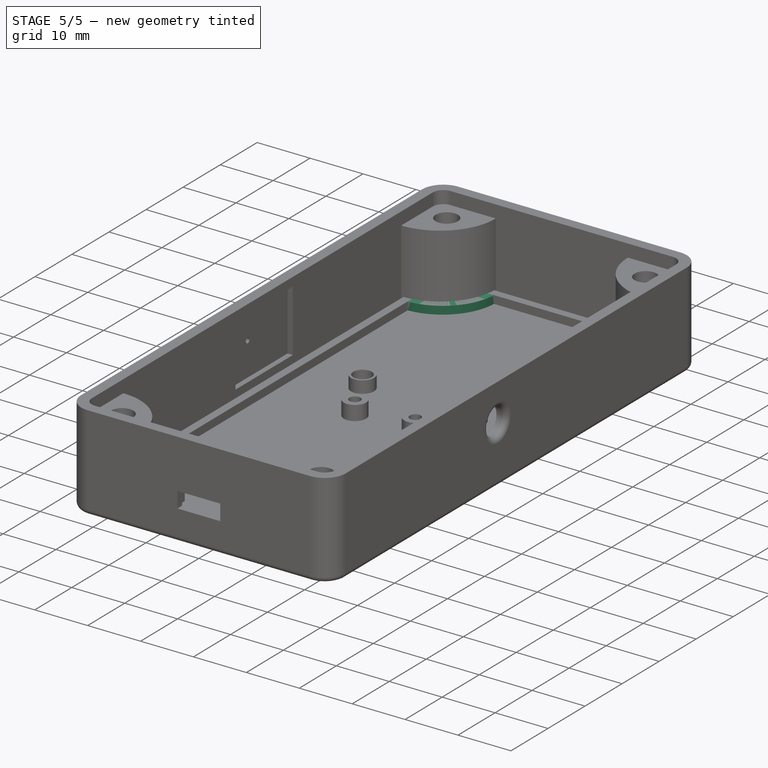
[diagram: stage 5 of 5 — iso view after this stage's code; geometry added in this stage tinted green]
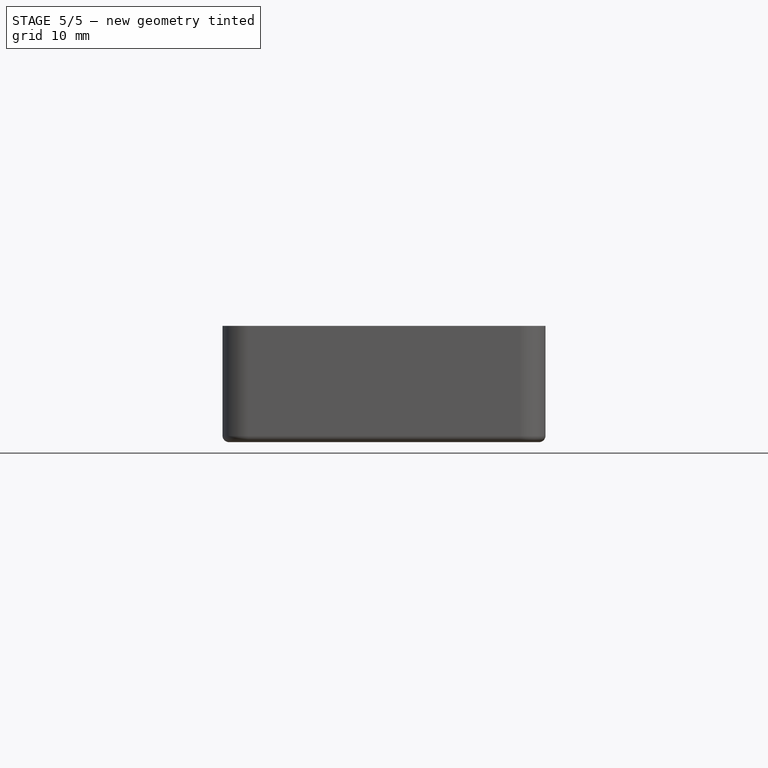
[diagram: stage 5 of 5 — front view after this stage's code; geometry added in this stage tinted green]
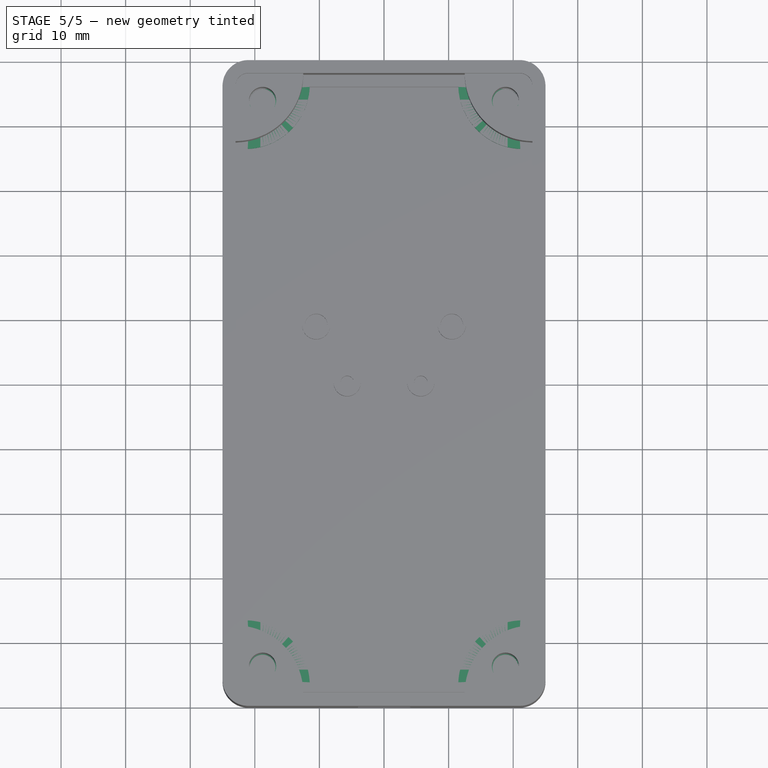
[diagram: stage 5 of 5 — top view after this stage's code; geometry added in this stage tinted green]
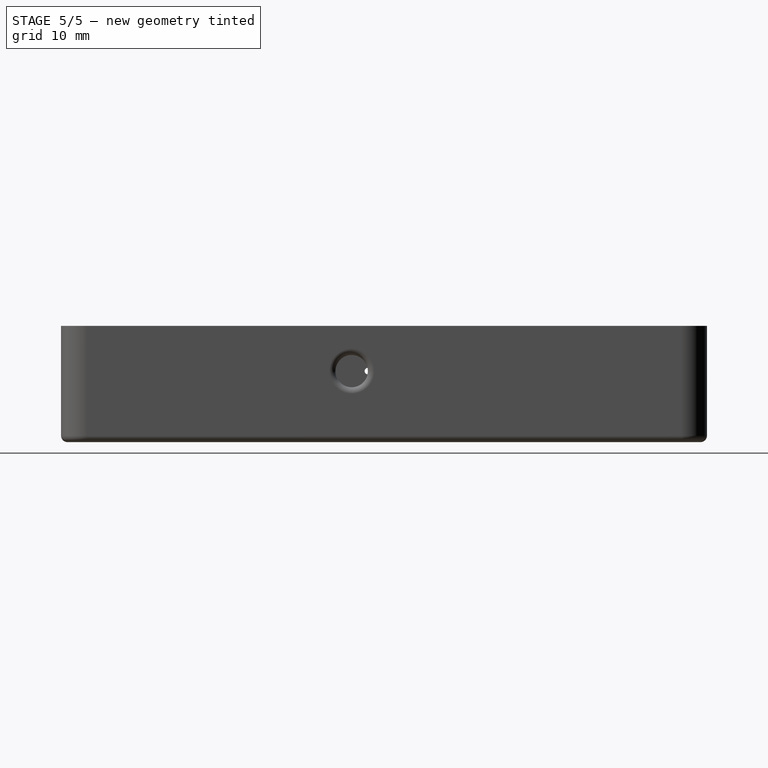
[diagram: stage 5 of 5 — right view after this stage's code; geometry added in this stage tinted green]
FEATURE [Sketcher::SketchObject] Sketch006  label="Main Ring Lug Sketch"
  ArcFitTolerance = 0
  AttachmentSupport = -> [Pocket001]
  FullyConstrained = true
  MakeInternals = false
  MapMode = 5
  Placement = pos=(0,0,2) rot=(0,0,1;0rad)
  expr: Constraints[0] = <<p>>.lid_screw_diameter
  expr: Constraints[10] = <<p>>.box_inner_width / 2 - <<p>>.box_inner_width / 2 - <<p>>.lid_ridge_size + <<p>>.lug_insert_diameter
  expr: Constraints[11] = <<p>>.box_inner_length / 2 - <<p>>.box_inner_length / 2 - <<p>>.lid_ridge_size + <<p>>.lug_insert_diameter
  expr: Constraints[7] = <<p>>.lid_screw_diameter * 2.5
  expr: Constraints[8] = <<p>>.box_inner_length / 2 - <<p>>.lid_ridge_size
  expr: Constraints[9] = <<p>>.box_inner_width / 2 - <<p>>.lid_ridge_size
  sketch-geometry (4):
    g0: Circle CenterX=-18.8 CenterY=43.8 CenterZ=0 NormalX=0 NormalY=0 NormalZ=1 AngleXU=0 Radius=2
    g1: LineSegment StartX=-21.5 StartY=36.5 StartZ=0 EndX=-21.5 EndY=46.5 EndZ=0
    g2: LineSegment StartX=-21.5 StartY=46.5 StartZ=0 EndX=-11.5 EndY=46.5 EndZ=0
    g3: ArcOfCircle CenterX=-21.5 CenterY=46.5 CenterZ=0 NormalX=0 NormalY=0 NormalZ=1 AngleXU=0 Radius=10 StartAngle=4.71239 EndAngle=6.28319
  constraints (12):
    c: Diameter(g0) = 4
    c: Vertical(g1)
    c: Coincident(g1,g2)
    c: Horizontal(g2)
    c: Coincident(g3,g1)
    c: Coincident(g3,g2)
    c: Coincident(g3,g1)
    c: Radius(g3) = 10
    c: DistanceY(g-1,g1) = 46.5
    c: DistanceX(g1,g-1) = 21.5
    c: DistanceX(g1,g0) = 2.7
    c: DistanceY(g0,g1) = 2.7
FEATURE [PartDesign::Pad] Pad004  label="Main Ring Lug"
  BaseFeature = -> Pocket001
  Direction = (0,0,1)
  Length = 1.5
  Length2 = 10
  Profile = -> Sketch006
  ReferenceAxis = -> Sketch006 [N_Axis]
  Suppressed = false
  Type = 0
  expr: Length = <<p>>.lid_ridge_size
FEATURE [PartDesign::Mirrored] Mirrored002
  MirrorPlane = -> Sketch006 [V_Axis]
  Suppressed = false
  TransformMode = 0
FEATURE [PartDesign::Mirrored] Mirrored003
  MirrorPlane = -> Sketch006 [H_Axis]
  Suppressed = false
  TransformMode = 0
FEATURE [PartDesign::MultiTransform] MultiTransform001  label="Ring Lugs Mirror"
  BaseFeature = -> Pad004
  Originals = -> [Pad004]
  Suppressed = false
  TransformMode = 0
  Transformations = -> [Mirrored002,Mirrored003]
FEATURE [Sketcher::SketchObject] Sketch007  label="Lid Hole Sketch"
  ArcFitTolerance = 0
  AttachmentSupport = -> [MultiTransform001]
  FullyConstrained = true
  MakeInternals = false
  MapMode = 5
  Placement = pos=(0,0,2) rot=(0,0,1;0rad)
  expr: Constraints[0] = <<p>>.lid_screw_diameter
  expr: Constraints[1] = <<p>>.box_inner_width / 2 - <<p>>.lug_insert_diameter
  expr: Constraints[2] = <<p>>.box_inner_length / 2 - <<p>>.lug_insert_diameter
  sketch-geometry (1):
    g0: Circle CenterX=-18.8 CenterY=43.8 CenterZ=0 NormalX=0 NormalY=0 NormalZ=1 AngleXU=0 Radius=2
  constraints (3):
    c: Diameter(g0) = 4
    c: DistanceX(g0,g-1) = 18.8
    c: DistanceY(g-1,g0) = 43.8
FEATURE [PartDesign::Pocket] Pocket002  label="Lid Hole"
  BaseFeature = -> MultiTransform001
  Direction = (0,0,-1)
  Length = 2
  Length2 = 5
  Profile = -> Sketch007
  ReferenceAxis = -> Sketch007 [N_Axis]
  Suppressed = false
  Type = 0
  expr: Length = <<p>>.box_wall_thickness
FEATURE [PartDesign::Mirrored] Mirrored004
  MirrorPlane = -> Sketch007 [V_Axis]
  Suppressed = false
  TransformMode = 0
FEATURE [PartDesign::Mirrored] Mirrored005
  MirrorPlane = -> Sketch007 [H_Axis]
  Suppressed = false
  TransformMode = 0
FEATURE [PartDesign::MultiTransform] MultiTransform002  label="Lid Holes Mirror"
  BaseFeature = -> Pocket002
  Originals = -> [Pocket002]
  Suppressed = false
  TransformMode = 0
  Transformations = -> [Mirrored004,Mirrored005]
FEATURE [PartDesign::Fillet] Fillet001  label="Face Fillet"
  Base = -> MultiTransform002 [Edge15,Edge14,Edge12,Edge9,Edge3,Edge6,Edge11,Edge13]
  BaseFeature = -> MultiTransform002
  Radius = 1
  SupportTransform = false
  Suppressed = false
  UseAllEdges = false
  expr: Radius = <<p>>.face_fillet
FEATURE [PartDesign::Chamfer] Chamfer  label="Hole Chamfer"
  Angle = 45
  Base = -> Fillet001 [Edge40,Edge39,Edge37,Edge38]
  BaseFeature = -> Fillet001
  ChamferType = 0
  FlipDirection = false
  Size = 1.98
  Size2 = 1
  SupportTransform = false
  Suppressed = false
  UseAllEdges = false
  expr: Size = <<p>>.lid_screw_chamfer
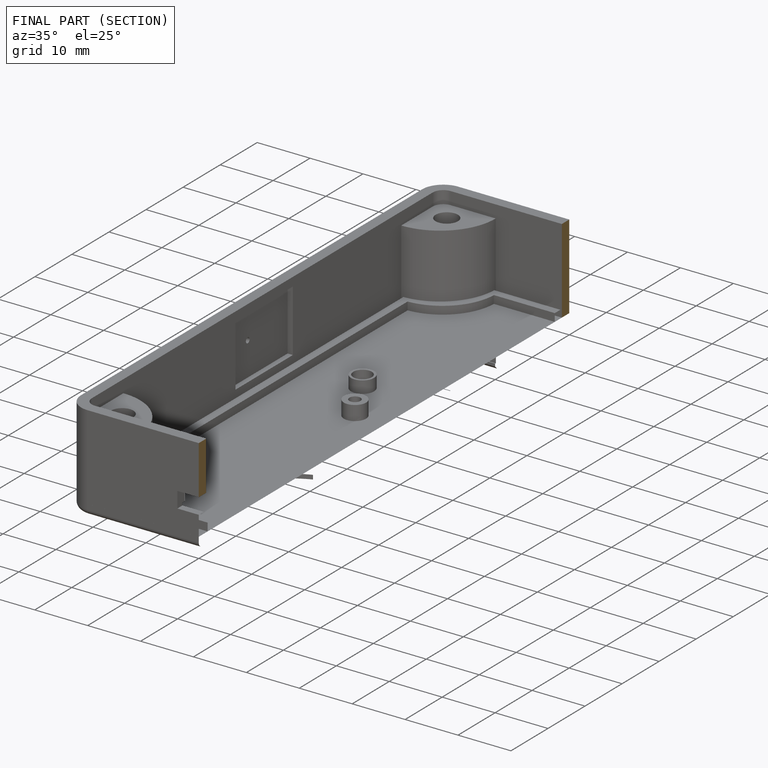
[diagram: finished part — half-section view (interior)]
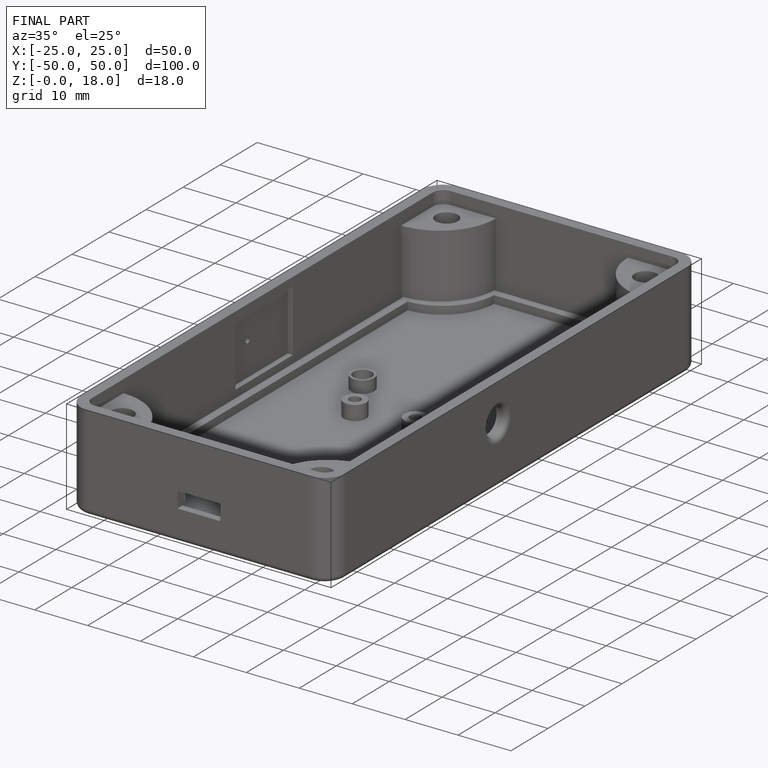
[diagram: finished part — iso view with bounding-box wireframe]
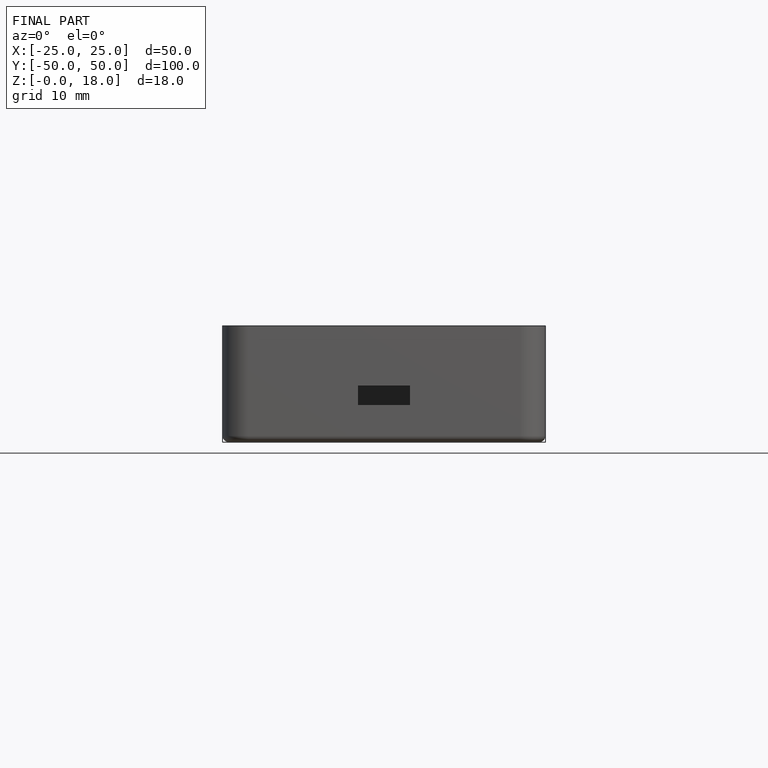
[diagram: finished part — front view with bounding-box wireframe]
